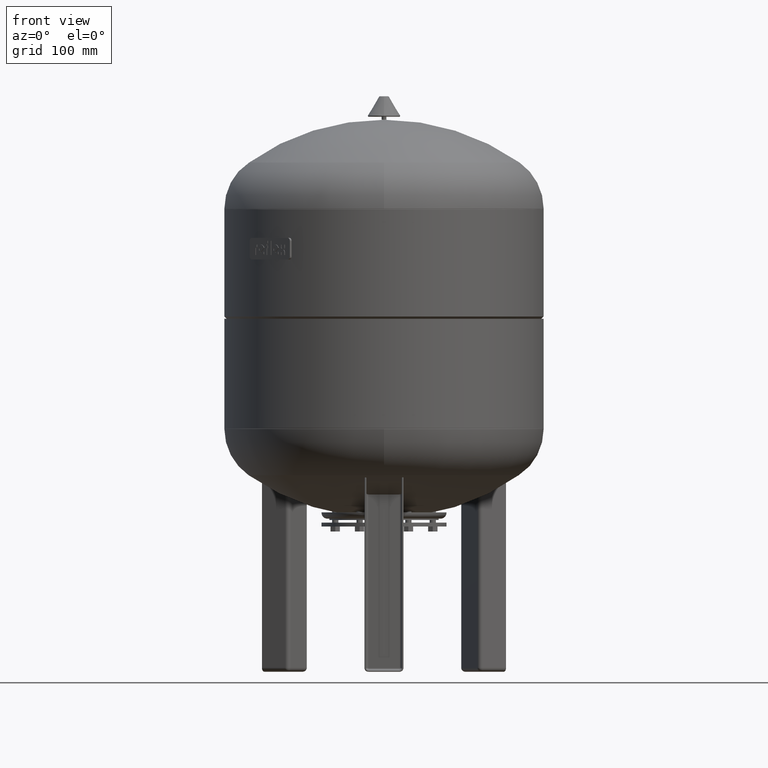
[diagram: clean part render]
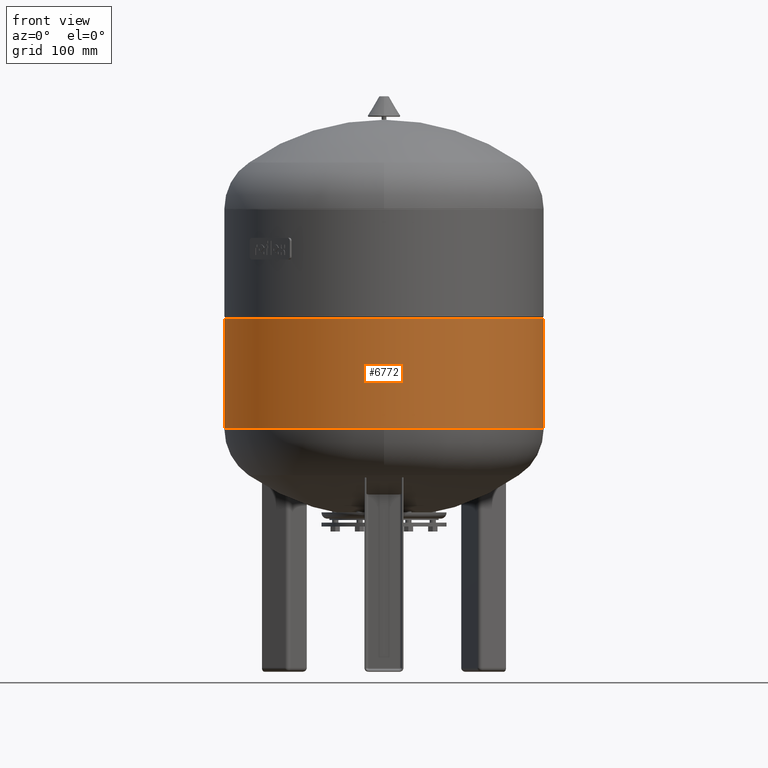
[diagram: same view with one face highlighted and labeled with its STEP entity id]
A machine part, front view. The second image highlights one B-rep face of the part: STEP entity #6772.
In plain terms, the highlighted cylindrical surface (partial cylindrical patch) has radius 204.5 mm, axis along (-0, 0, -1).
Its self-contained STEP definition (entity closure, byte-faithful):
#6731=CARTESIAN_POINT('',(-8.572528E-015,4.286264E-015,382.0));
#6732=DIRECTION('',(-1.224647E-016,6.123234E-017,-1.0));
#6733=DIRECTION('',(-1.0,0.0,0.0));
#6734=AXIS2_PLACEMENT_3D('',#6731,#6732,#6733);
#6735=CYLINDRICAL_SURFACE('',#6734,204.500000000000030);
#6736=CARTESIAN_POINT('',(-204.500000000000030,-1.647150E-014,312.000000000000060));
#6737=VERTEX_POINT('',#6736);
#6738=CARTESIAN_POINT('',(-204.500000000000000,-2.504403E-014,452.000000000000060));
#6739=VERTEX_POINT('',#6738);
#6740=CARTESIAN_POINT('',(-204.500000000000030,-1.647150E-014,312.000000000000060));
#6741=DIRECTION('',(0.0,0.0,1.0));
#6742=VECTOR('',#6741,140.0);
#6743=LINE('',#6740,#6742);
#6744=EDGE_CURVE('',#6737,#6739,#6743,.T.);
#6745=ORIENTED_EDGE('',*,*,#6744,.F.);
#6746=CARTESIAN_POINT('',(204.500000000000030,8.573355E-015,312.0));
#6747=VERTEX_POINT('',#6746);
#6748=CARTESIAN_POINT('',(-1.714506E-014,8.572528E-015,312.0));
#6749=DIRECTION('',(0.0,0.0,-1.0));
#6750=DIRECTION('',(-1.0,0.0,0.0));
#6751=AXIS2_PLACEMENT_3D('',#6748,#6749,#6750);
#6752=CIRCLE('',#6751,204.500000000000030);
#6753=EDGE_CURVE('',#6747,#6737,#6752,.T.);
#6754=ORIENTED_EDGE('',*,*,#6753,.F.);
#6755=CARTESIAN_POINT('',(204.500000000000030,8.271069E-019,452.0));
#6756=VERTEX_POINT('',#6755);
#6757=CARTESIAN_POINT('',(204.500000000000030,8.573355E-015,312.0));
#6758=DIRECTION('',(0.0,0.0,1.0));
#6759=VECTOR('',#6758,140.0);
#6760=LINE('',#6757,#6759);
#6761=EDGE_CURVE('',#6747,#6756,#6760,.T.);
#6762=ORIENTED_EDGE('',*,*,#6761,.T.);
#6763=CARTESIAN_POINT('',(5.916457E-030,-3.263115E-030,452.000000000000060));
#6764=DIRECTION('',(0.0,0.0,-1.0));
#6765=DIRECTION('',(-1.0,0.0,0.0));
#6766=AXIS2_PLACEMENT_3D('',#6763,#6764,#6765);
#6767=CIRCLE('',#6766,204.500000000000000);
#6768=EDGE_CURVE('',#6756,#6739,#6767,.T.);
#6769=ORIENTED_EDGE('',*,*,#6768,.T.);
#6770=EDGE_LOOP('',(#6745,#6754,#6762,#6769));
#6771=FACE_OUTER_BOUND('',#6770,.T.);
#6772=ADVANCED_FACE('',(#6771),#6735,.T.);